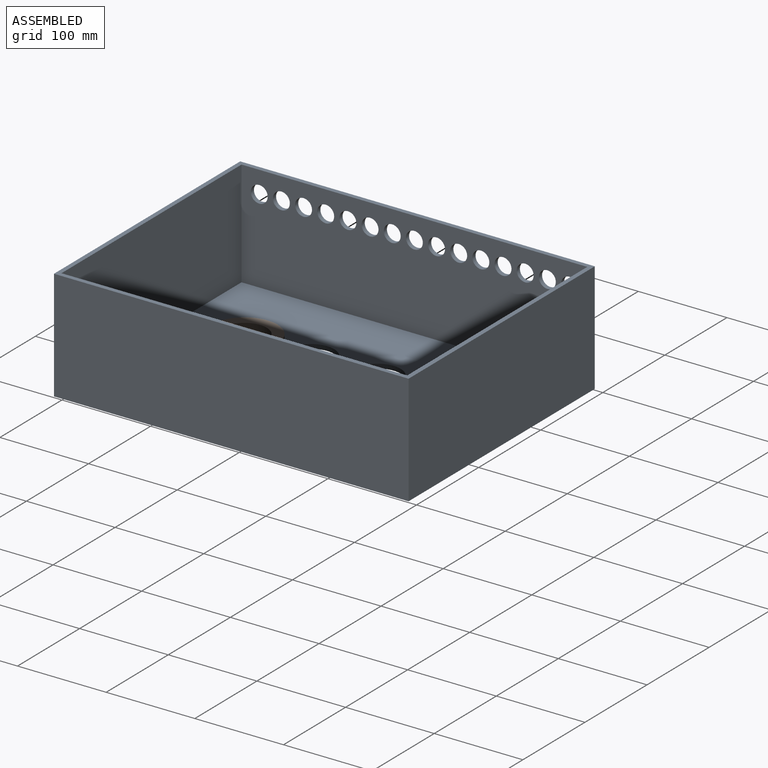
[diagram: assembled view]
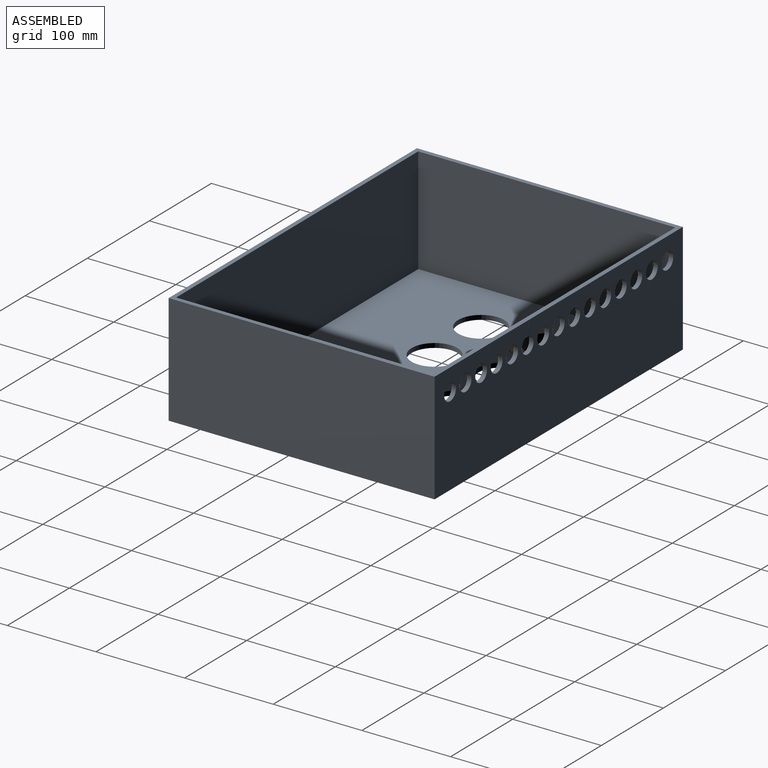
[diagram: assembled view, second angle]
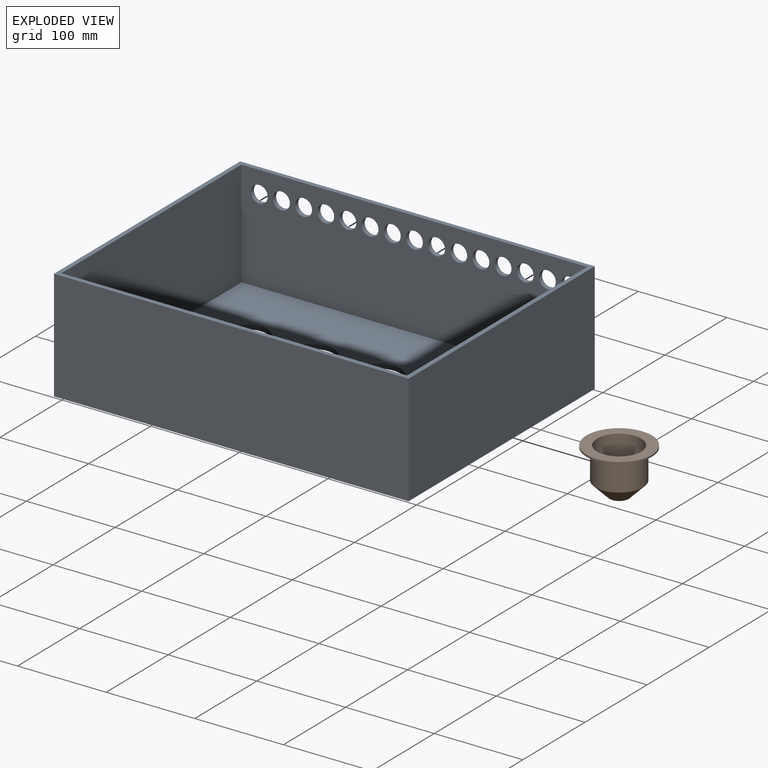
[diagram: exploded view]
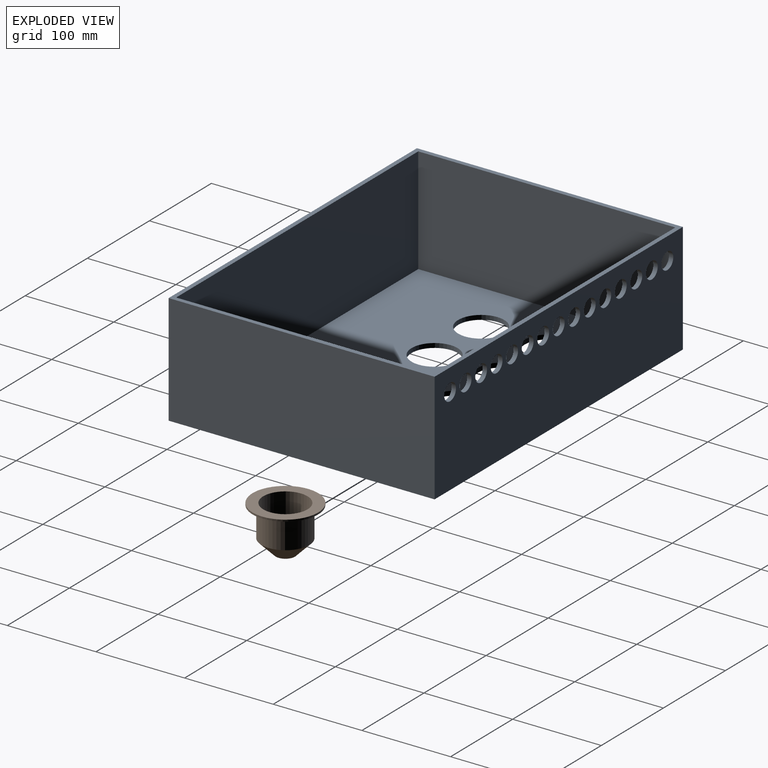
[diagram: exploded view, second angle]
ASSEMBLY  parts=2 mates=2
PART A: 34 faces, bbox 400x300x125 mm
  f0: cylinder r=9.5mm len=19mm, axis (0,1,0), area 298.5mm2, adj f17,f21
  f1: cylinder r=9.5mm len=19mm, axis (0,1,0), area 298.5mm2, adj f17,f21
  f2: cylinder r=9.5mm len=19mm, axis (0,1,0), area 298.5mm2, adj f17,f21
  f3: cylinder r=9.5mm len=19mm, axis (0,1,0), area 298.5mm2, adj f17,f21
  f4: cylinder r=9.5mm len=19mm, axis (0,1,0), area 298.5mm2, adj f17,f21
  f5: cylinder r=9.5mm len=19mm, axis (0,1,0), area 298.5mm2, adj f17,f21
  f6: cylinder r=9.5mm len=19mm, axis (0,1,0), area 298.5mm2, adj f17,f21
  f7: cylinder r=9.5mm len=19mm, axis (0,1,0), area 298.5mm2, adj f17,f21
  f8: cylinder r=9.5mm len=19mm, axis (0,1,0), area 298.5mm2, adj f17,f21
  f9: cylinder r=9.5mm len=19mm, axis (0,1,0), area 298.5mm2, adj f17,f21
  f10: cylinder r=9.5mm len=19mm, axis (0,1,0), area 298.5mm2, adj f17,f21
  f11: cylinder r=9.5mm len=19mm, axis (0,1,0), area 298.5mm2, adj f17,f21
  f12: cylinder r=9.5mm len=19mm, axis (0,1,0), area 298.5mm2, adj f17,f21
  f13: cylinder r=9.5mm len=19mm, axis (0,1,0), area 298.5mm2, adj f17,f21
  f14: plane 300x125mm, normal (-1,0,0), area 37500mm2, adj f15,f17,f18,f23
  f15: plane 400x125mm, normal (0,-1,0), area 50000mm2, adj f14,f16,f18,f23
  f16: plane 300x125mm, normal (1,0,0), area 37500mm2, adj f15,f17,f18,f23
  f17: plane 400x125mm, normal (0,1,0), area 45747.1mm2, adj f0,f1,f2,f3,f4,f5,f6,f7
  f18: plane 400x300mm, normal (0,0,-1), area 103010.3mm2, adj f14,f15,f16,f17,f25,f26,f27,f28
  f19: plane 390x120mm, normal (0,1,0), area 46800mm2, adj f20,f22,f23,f24
  f20: plane 290x120mm, normal (1,0,0), area 34800mm2, adj f19,f21,f23,f24
  f21: plane 390x120mm, normal (0,-1,0), area 42547.1mm2, adj f0,f1,f2,f3,f4,f5,f6,f7
  f22: plane 290x120mm, normal (-1,0,0), area 34800mm2, adj f19,f21,f23,f24
  f23: plane 400x300mm, normal (0,0,1), area 6900mm2, adj f14,f15,f16,f17,f19,f20,f21,f22
  f24: plane 390x290mm, normal (0,0,1), area 96110.3mm2, adj f19,f20,f21,f22,f25,f26,f27,f28
  f25: cylinder r=26mm len=52mm, axis (0,0,1), area 816.8mm2, adj f18,f24
  f26: cylinder r=26mm len=52mm, axis (0,0,1), area 816.8mm2, adj f18,f24
  f27: cylinder r=26mm len=52mm, axis (0,0,1), area 816.8mm2, adj f18,f24
  f28: cylinder r=26mm len=52mm, axis (0,0,1), area 816.8mm2, adj f18,f24
  f29: cylinder r=26mm len=52mm, axis (0,0,1), area 816.8mm2, adj f18,f24
  f30: cylinder r=26mm len=52mm, axis (0,0,1), area 816.8mm2, adj f18,f24
  f31: cylinder r=26mm len=52mm, axis (0,0,1), area 816.8mm2, adj f18,f24
  f32: cylinder r=26mm len=52mm, axis (0,0,1), area 816.8mm2, adj f18,f24
  f33: cylinder r=9.5mm len=19mm, axis (0,1,0), area 298.5mm2, adj f17,f21
PART B: 9 faces, bbox 74x74x52 mm
  f0: cone r=25mm half-angle=45deg, axis (0,0,-1), area 2332.5mm2, adj f1,f8
  f1: cylinder r=25mm len=50mm, axis (0,0,1), area 5497.8mm2, adj f0,f2
  f2: plane 74x74mm, normal (0,0,-1), area 2337.3mm2, adj f1,f3
  f3: cylinder r=37mm len=74mm, axis (0,0,1), area 465mm2, adj f2,f4
  f4: plane 74x74mm, normal (0,0,1), area 2010.6mm2, adj f3,f5
  f5: cylinder r=27mm len=54mm, axis (0,0,1), area 5738.9mm2, adj f4,f6
  f6: cone r=10.83mm half-angle=45deg, axis (0,0,-1), area 2717.9mm2, adj f5,f7
  f7: plane 21.66x21.66mm, normal (0,0,1), area 368.4mm2, adj f6
  f8: plane 20x20mm, normal (0,0,-1), area 314.2mm2, adj f0
PLACE A t=(87.05,62.86,8.2)mm fixed
PLACE B rot(axis=(0,1,0),180deg) t=(162.05,262.86,15.2)mm
MATE cylindrical B.f0 <-> A.f25  axis (0,0,-1) through (162.05,262.86,13.2)mm
MATE parallel B.f0 <-> A.f25  axis (0,0,-1) through (162.05,262.86,13.2)mm
